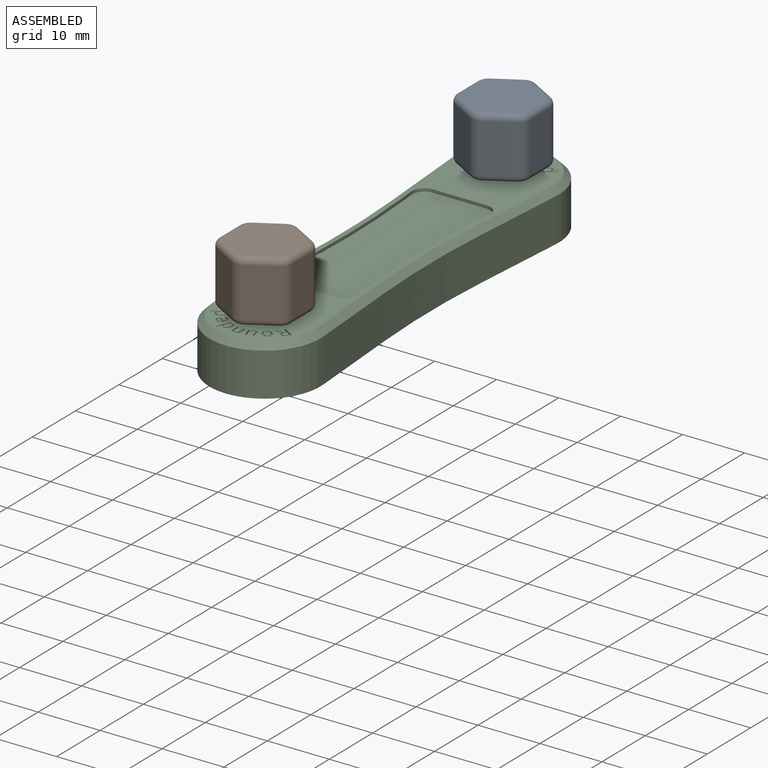
[diagram: assembled view]
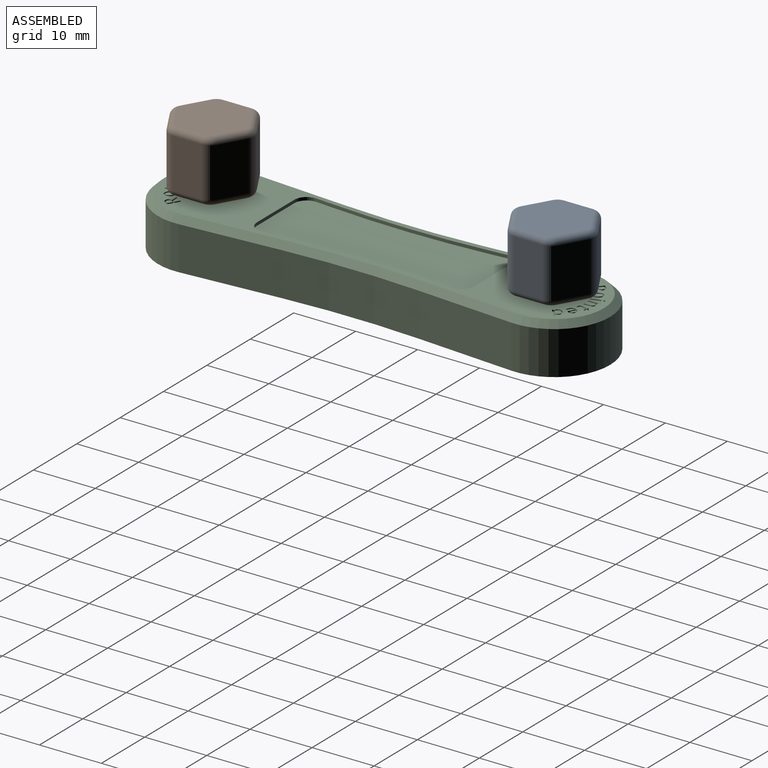
[diagram: assembled view, second angle]
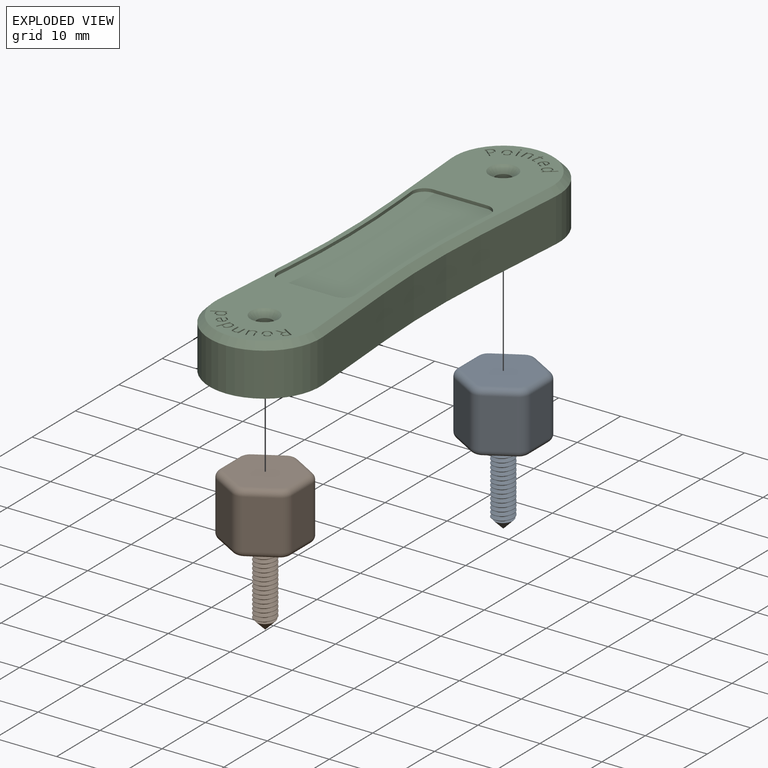
[diagram: exploded view]
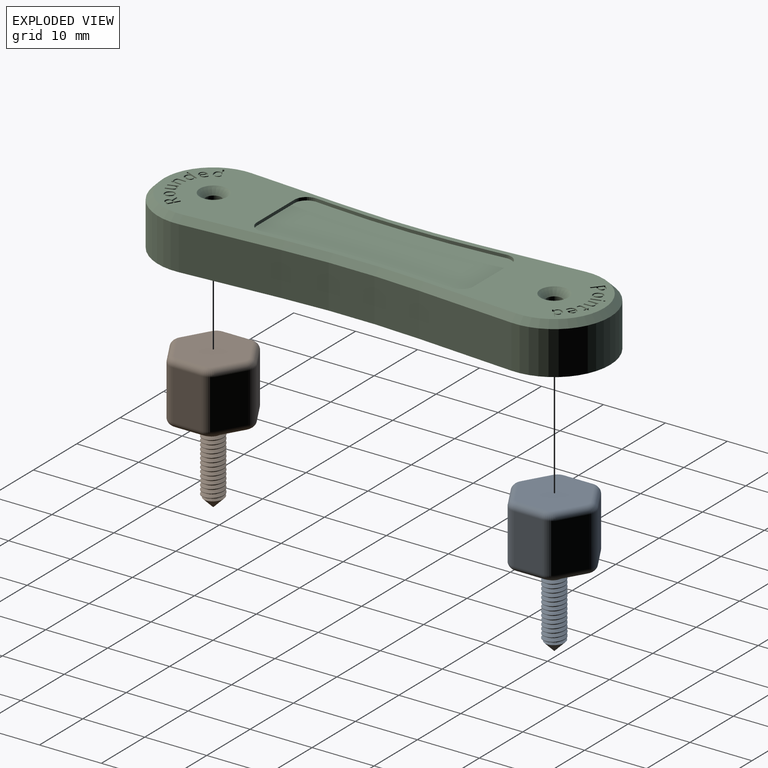
[diagram: exploded view, second angle]
ASSEMBLY  parts=3 mates=2
PART A: 46 faces, bbox 12.3x13.6x23 mm
  f0: cylinder r=1.75mm len=11.3mm, axis (0,0,1), area 23.3mm2, adj f9,f40,f42,f43,f44
  f1: plane 0.1x0.1mm, normal (0,0,-1), area 0mm2, adj f45
  f2: plane 8x4mm, normal (0.5,0.87,0), area 37mm2, adj f10,f11,f24,f38
  f3: plane 8x4mm, normal (-0.5,0.87,0), area 37mm2, adj f11,f12,f27,f34
  f4: plane 8x4.62mm, normal (-1,0,0), area 37mm2, adj f12,f13,f23,f30
  f5: plane 8x4mm, normal (-0.5,-0.87,0), area 37mm2, adj f13,f14,f19,f29
  f6: plane 8x4mm, normal (0.5,-0.87,0), area 37mm2, adj f14,f15,f16,f33
  f7: plane 8x4.62mm, normal (1,0,0), area 37mm2, adj f10,f15,f20,f37
  f8: plane 11.24x10mm, normal (0,0,1), area 86.3mm2, adj f28,f29,f30,f31,f32,f33,f34,f35
  f9: plane 11.24x10mm, normal (0,0,-1), area 76.7mm2, adj f0,f16,f17,f18,f19,f20,f21,f22
  f10: cylinder r=2mm len=8mm, axis (0,0,-1), area 16.8mm2, adj f2,f7,f22,f39
  f11: cylinder r=2mm len=8mm, axis (0,0,-1), area 16.8mm2, adj f2,f3,f26,f36
  f12: cylinder r=2mm len=8mm, axis (0,0,-1), area 16.8mm2, adj f3,f4,f25,f32
  f13: cylinder r=2mm len=8mm, axis (0,0,-1), area 16.8mm2, adj f4,f5,f21,f28
  f14: cylinder r=2mm len=8mm, axis (0,0,-1), area 16.8mm2, adj f5,f6,f17,f31
  f15: cylinder r=2mm len=8mm, axis (0,0,-1), area 16.8mm2, adj f6,f7,f18,f35
  f16: cylinder r=1mm len=4.5mm, axis (0.87,0.5,0), area 7.3mm2, adj f6,f9,f17,f18
  f17: torus R=1mm, axis (0,0,1), area 2.7mm2, adj f9,f14,f16,f19
  f18: torus R=1mm, axis (0,0,1), area 2.7mm2, adj f9,f15,f16,f20
  f19: cylinder r=1mm len=4.5mm, axis (0.87,-0.5,0), area 7.3mm2, adj f5,f9,f17,f21
  f20: cylinder r=1mm len=4.62mm, axis (0,1,0), area 7.3mm2, adj f7,f9,f18,f22
  f21: torus R=1mm, axis (0,0,1), area 2.7mm2, adj f9,f13,f19,f23
  f22: torus R=1mm, axis (0,0,1), area 2.7mm2, adj f9,f10,f20,f24
  f23: cylinder r=1mm len=4.62mm, axis (0,-1,0), area 7.3mm2, adj f4,f9,f21,f25
  f24: cylinder r=1mm len=4.5mm, axis (-0.87,0.5,0), area 7.3mm2, adj f2,f9,f22,f26
  f25: torus R=1mm, axis (0,0,1), area 2.7mm2, adj f9,f12,f23,f27
  f26: torus R=1mm, axis (0,0,1), area 2.7mm2, adj f9,f11,f24,f27
  f27: cylinder r=1mm len=4.5mm, axis (-0.87,-0.5,0), area 7.3mm2, adj f3,f9,f25,f26
  f28: torus R=1mm, axis (0,0,1), area 2.7mm2, adj f8,f13,f29,f30
  f29: cylinder r=1mm len=4.5mm, axis (-0.87,0.5,0), area 7.3mm2, adj f5,f8,f28,f31
  f30: cylinder r=1mm len=4.62mm, axis (0,1,0), area 7.3mm2, adj f4,f8,f28,f32
  f31: torus R=1mm, axis (0,0,1), area 2.7mm2, adj f8,f14,f29,f33
  f32: torus R=1mm, axis (0,0,1), area 2.7mm2, adj f8,f12,f30,f34
  f33: cylinder r=1mm len=4.5mm, axis (-0.87,-0.5,0), area 7.3mm2, adj f6,f8,f31,f35
  f34: cylinder r=1mm len=4.5mm, axis (0.87,0.5,0), area 7.3mm2, adj f3,f8,f32,f36
  f35: torus R=1mm, axis (0,0,1), area 2.7mm2, adj f8,f15,f33,f37
  f36: torus R=1mm, axis (0,0,1), area 2.7mm2, adj f8,f11,f34,f38
  f37: cylinder r=1mm len=4.62mm, axis (0,-1,0), area 7.3mm2, adj f7,f8,f35,f39
  f38: cylinder r=1mm len=4.5mm, axis (0.87,-0.5,0), area 7.3mm2, adj f2,f8,f36,f39
  f39: torus R=1mm, axis (0,0,1), area 2.7mm2, adj f8,f10,f37,f38
  f40: plane 0.58x0.5mm, normal (0,1,0), area 0.1mm2, adj f0,f41,f42,f43
  f41: cylinder r=1.75mm len=3.5mm, axis (0,0,1), area 1mm2, adj f9,f40,f43
  f42: bspline ~12.21x4.04mm, area 95.9mm2, adj f0,f40,f43,f44,f45
  f43: bspline ~12.21x4.04mm, area 99mm2, adj f0,f40,f41,f42,f44
  f44: cone r=0.05mm half-angle=45deg, axis (0,0,1), area 1mm2, adj f0,f42,f43,f45
  f45: cone r=0.05mm half-angle=45deg, axis (0,0,1), area 9.5mm2, adj f1,f42,f44
PART B: same geometry as A
PART C: 328 faces, bbox 18x73x8 mm
  f0: plane 71x15.99mm, normal (0,0,1), area 513.6mm2, adj f18,f19,f20,f21,f22,f23,f24,f25
  f1: cylinder r=150mm len=22.26mm, axis (0,0,-1), area 155.9mm2, adj f2,f10,f11,f22
  f2: plane 15.7x7mm, normal (1,-0.07,0), area 110.2mm2, adj f1,f3,f11,f20
  f3: cylinder r=9mm len=9.67mm, axis (0,0,-1), area 103.6mm2, adj f2,f4,f11,f21
  f4: cylinder r=9mm len=9.68mm, axis (0,0,-1), area 103.6mm2, adj f3,f5,f11,f23
  f5: plane 15.7x7mm, normal (-1,-0.08,0), area 110.2mm2, adj f4,f6,f11,f25
  f6: cylinder r=150mm len=22.26mm, axis (0,0,-1), area 155.9mm2, adj f5,f7,f11,f27
  f7: plane 15.71x7mm, normal (-1,0.07,0), area 110.2mm2, adj f6,f8,f11,f29
  f8: cylinder r=9mm len=9.65mm, axis (0,0,-1), area 103.2mm2, adj f7,f9,f11,f28
  f9: cylinder r=9mm len=9.67mm, axis (0,0,-1), area 103.2mm2, adj f8,f10,f11,f26
  f10: plane 15.7x7mm, normal (1,0.07,0), area 110.2mm2, adj f1,f9,f11,f24
  f11: plane 73x17.99mm, normal (0,0,-1), area 1117.1mm2, adj f1,f2,f3,f4,f5,f6,f7,f8
  f12: cylinder r=1.25mm len=7mm, axis (0,0,-1), area 55mm2, adj f11,f18
  f13: cylinder r=1.25mm len=7mm, axis (0,0,-1), area 55mm2, adj f11,f19
  f14: cylinder r=1.25mm len=6mm, axis (0,0,-1), area 47.1mm2, adj f11,f15
  f15: plane 2.5x2.5mm, normal (0,0,-1), area 4.9mm2, adj f14
  f16: cylinder r=1.25mm len=6mm, axis (0,0,-1), area 47.1mm2, adj f11,f17
  f17: plane 2.5x2.5mm, normal (0,0,-1), area 4.9mm2, adj f16
  f18: cone r=2.25mm half-angle=45deg, axis (0,0,1), area 15.6mm2, adj f0,f12
  f19: cone r=2.25mm half-angle=45deg, axis (0,0,1), area 15.6mm2, adj f0,f13
  f20: plane 15.78x2.17mm, normal (0.71,-0.05,0.71), area 22.3mm2, adj f0,f2,f21,f22
  f21: cone r=9mm half-angle=45deg, axis (0,0,-1), area 19.8mm2, adj f0,f3,f20,f23
  f22: cone r=150mm half-angle=45deg, axis (0,0,1), area 31.6mm2, adj f0,f1,f20,f24
  f23: cone r=8mm half-angle=45deg, axis (0,0,-1), area 19.8mm2, adj f0,f4,f21,f25
  f24: plane 15.78x2.16mm, normal (0.71,0.05,0.71), area 22.3mm2, adj f0,f10,f22,f26
  f25: plane 15.78x2.19mm, normal (-0.71,-0.05,0.71), area 22.3mm2, adj f0,f5,f23,f27
  f26: cone r=9mm half-angle=45deg, axis (0,0,-1), area 19.7mm2, adj f0,f9,f24,f28
  f27: cone r=151mm half-angle=45deg, axis (0,0,1), area 31.6mm2, adj f0,f6,f25,f29
  f28: cone r=8mm half-angle=45deg, axis (0,0,-1), area 19.7mm2, adj f0,f8,f26,f29
  f29: plane 15.78x2.14mm, normal (-0.71,0.05,0.71), area 22.3mm2, adj f0,f7,f27,f28
  f30: cylinder r=2mm len=2.17mm, axis (0,0,1), area 1.7mm2, adj f0,f31,f43,f44
  f31: plane 4.32x0.5mm, normal (0,-1,0), area 2.2mm2, adj f0,f30,f32,f44
  f32: plane 4.32x0.5mm, normal (0,-1,0), area 2.2mm2, adj f0,f31,f33,f44
  f33: cylinder r=2mm len=2.17mm, axis (0,0,1), area 1.7mm2, adj f0,f32,f34,f44
  f34: plane 2.52x0.5mm, normal (1,0.09,0), area 1.3mm2, adj f0,f33,f35,f44
  f35: cylinder r=150mm len=25.62mm, axis (0,0,1), area 12.8mm2, adj f0,f34,f36,f44
  f36: plane 2.52x0.5mm, normal (1,-0.09,0), area 1.3mm2, adj f0,f35,f37,f44
  f37: cylinder r=2mm len=2.17mm, axis (0,0,1), area 1.7mm2, adj f0,f36,f38,f44
  f38: plane 4.32x0.5mm, normal (0,1,0), area 2.2mm2, adj f0,f37,f39,f44
  f39: plane 4.32x0.5mm, normal (0,1,0), area 2.2mm2, adj f0,f38,f40,f44
  f40: cylinder r=2mm len=2.17mm, axis (0,0,1), area 1.7mm2, adj f0,f39,f41,f44
  f41: plane 2.52x0.5mm, normal (-1,-0.09,0), area 1.3mm2, adj f0,f40,f42,f44
  f42: cylinder r=150mm len=25.62mm, axis (0,0,1), area 12.8mm2, adj f0,f41,f43,f44
  f43: plane 2.52x0.5mm, normal (-1,0.09,0), area 1.3mm2, adj f0,f30,f42,f44
  f44: plane 35x12.65mm, normal (0,0,1), area 407.7mm2, adj f30,f31,f32,f33,f34,f35,f36,f37
  f45: extruded ~0.58x0.34mm, area 0.2mm2, adj f0,f46,f62,f64
  f46: extruded ~0.25x0.13mm, area 0mm2, adj f0,f45,f47,f64
  f47: extruded ~0.25x0.12mm, area 0mm2, adj f0,f46,f63,f64
  f48: extruded ~0.25x0.09mm, area 0mm2, adj f0,f49,f63,f64
  f49: extruded ~0.25x0.12mm, area 0mm2, adj f0,f48,f50,f64
  f50: extruded ~0.25x0.16mm, area 0.1mm2, adj f0,f49,f51,f64
  f51: extruded ~0.25x0.23mm, area 0.1mm2, adj f0,f50,f52,f64
  f52: plane 0.89x0.25mm, normal (-0.96,0.26,0), area 0.2mm2, adj f0,f51,f53,f64
  f53: plane 0.44x0.25mm, normal (0.26,0.96,0), area 0.1mm2, adj f0,f52,f54,f64
  f54: plane 0.25x0.18mm, normal (-0.96,0.26,0), area 0mm2, adj f0,f53,f55,f64
  f55: plane 0.44x0.25mm, normal (-0.26,-0.96,0), area 0.1mm2, adj f0,f54,f56,f64
  f56: plane 0.35x0.25mm, normal (-0.96,0.26,0), area 0.1mm2, adj f0,f55,f57,f64
  f57: plane 0.25x0.13mm, normal (-0.26,-0.96,0), area 0mm2, adj f0,f56,f58,f64
  f58: plane 0.3x0.25mm, normal (0.85,-0.53,0), area 0.1mm2, adj f0,f57,f59,f64
  f59: plane 0.25x0.24mm, normal (0.15,-0.99,0), area 0.1mm2, adj f0,f58,f60,f64
  f60: plane 0.25x0.11mm, normal (0.96,-0.26,0), area 0mm2, adj f0,f59,f61,f64
  f61: plane 0.25x0.22mm, normal (0.26,0.96,0), area 0.1mm2, adj f0,f60,f62,f64
  f62: plane 0.9x0.25mm, normal (0.96,-0.26,0), area 0.2mm2, adj f0,f45,f61,f64
  f63: plane 0.25x0.18mm, normal (-0.96,0.26,0), area 0mm2, adj f0,f47,f48,f64
  f64: plane 2.01x1.05mm, normal (0,0,1), area 0.6mm2, adj f45,f46,f47,f48,f49,f50,f51,f52
  f65: extruded ~0.48x0.25mm, area 0.1mm2, adj f0,f66,f80,f84
  f66: extruded ~0.31x0.25mm, area 0.1mm2, adj f0,f65,f67,f84
  f67: extruded ~0.43x0.25mm, area 0.1mm2, adj f0,f66,f81,f84
  f68: extruded ~0.53x0.25mm, area 0.1mm2, adj f0,f69,f82,f84
  f69: extruded ~0.41x0.3mm, area 0.1mm2, adj f0,f68,f70,f84
  f70: extruded ~0.54x0.25mm, area 0.1mm2, adj f0,f69,f71,f84
  f71: extruded ~0.47x0.42mm, area 0.2mm2, adj f0,f70,f72,f84
  f72: extruded ~0.61x0.25mm, area 0.2mm2, adj f0,f71,f73,f84
  f73: extruded ~0.46x0.36mm, area 0.2mm2, adj f0,f72,f74,f84
  f74: extruded ~0.25x0.24mm, area 0.1mm2, adj f0,f73,f79,f84
  f75: extruded ~0.29x0.25mm, area 0.1mm2, adj f76,f83,f84,f85
  f76: extruded ~0.32x0.25mm, area 0.1mm2, adj f75,f77,f84,f85
  f77: extruded ~0.25x0.25mm, area 0.1mm2, adj f76,f78,f84,f85
  f78: extruded ~0.35x0.25mm, area 0.1mm2, adj f77,f83,f84,f85
  f79: extruded ~0.25x0.24mm, area 0.1mm2, adj f0,f74,f80,f84
  f80: plane 0.25x0.18mm, normal (-0.86,0.52,0), area 0.1mm2, adj f0,f65,f79,f84
  f81: plane 0.92x0.56mm, normal (0.52,0.86,0), area 0.3mm2, adj f0,f67,f82,f84
  f82: plane 0.25x0.13mm, normal (-0.86,0.52,0), area 0mm2, adj f0,f68,f81,f84
  f83: plane 0.7x0.42mm, normal (-0.52,-0.86,0), area 0.2mm2, adj f75,f78,f84,f85
  f84: plane 1.72x1.51mm, normal (0,0,1), area 1mm2, adj f65,f66,f67,f68,f69,f70,f71,f72
  f85: plane 0.81x0.67mm, normal (0,0,1), area 0.3mm2, adj f75,f76,f77,f78,f83
  f86: extruded ~0.53x0.25mm, area 0.1mm2, adj f0,f87,f105,f110
  f87: extruded ~0.47x0.25mm, area 0.1mm2, adj f0,f86,f88,f110
  f88: extruded ~0.58x0.25mm, area 0.2mm2, adj f0,f87,f89,f110
  f89: extruded ~0.51x0.36mm, area 0.2mm2, adj f0,f88,f90,f110
  f90: extruded ~0.5x0.25mm, area 0.1mm2, adj f0,f89,f91,f110
  f91: extruded ~0.49x0.25mm, area 0.1mm2, adj f0,f90,f106,f110
  f92: extruded ~0.43x0.25mm, area 0.1mm2, adj f93,f99,f110,f111
  f93: extruded ~0.33x0.25mm, area 0.1mm2, adj f92,f94,f110,f111
  f94: extruded ~0.36x0.25mm, area 0.1mm2, adj f93,f95,f110,f111
  f95: extruded ~0.38x0.3mm, area 0.1mm2, adj f94,f108,f110,f111
  f96: extruded ~0.4x0.25mm, area 0.1mm2, adj f97,f108,f110,f111
  f97: extruded ~0.32x0.25mm, area 0.1mm2, adj f96,f98,f110,f111
  f98: extruded ~0.35x0.25mm, area 0.1mm2, adj f97,f99,f110,f111
  f99: extruded ~0.37x0.28mm, area 0.1mm2, adj f92,f98,f110,f111
  f100: plane 1.73x1.4mm, normal (-0.63,0.78,0), area 0.6mm2, adj f0,f101,f109,f110
  f101: plane 0.25x0.18mm, normal (-0.78,-0.63,0), area 0.1mm2, adj f0,f100,f102,f110
  f102: plane 0.5x0.4mm, normal (0.63,-0.78,0), area 0.2mm2, adj f0,f101,f103,f110
  f103: plane 0.25x0.08mm, normal (0.67,-0.74,0), area 0mm2, adj f0,f102,f104,f110
  f104: plane 0.25x0.08mm, normal (0.7,-0.72,0), area 0mm2, adj f0,f103,f105,f110
  f105: plane 0.25x0.01mm, normal (-0.78,-0.63,0), area 0mm2, adj f0,f86,f104,f110
  f106: plane 0.25x0.01mm, normal (0.78,0.63,0), area 0mm2, adj f0,f91,f107,f110
  f107: plane 0.25x0.16mm, normal (0.74,-0.68,0), area 0.1mm2, adj f0,f106,f109,f110
  f108: plane 0.25x0.04mm, normal (0.63,-0.78,0), area 0mm2, adj f95,f96,f110,f111
  f109: plane 0.25x0.15mm, normal (0.78,0.63,0), area 0mm2, adj f0,f100,f107,f110
  f110: plane 2.38x1.81mm, normal (0,0,1), area 1.2mm2, adj f86,f87,f88,f89,f90,f91,f92,f93
  f111: plane 1.2x1.13mm, normal (0,0,1), area 0.9mm2, adj f92,f93,f94,f95,f96,f97,f98,f99
  f112: extruded ~0.45x0.36mm, area 0.1mm2, adj f0,f113,f128,f129
  f113: extruded ~0.61x0.25mm, area 0.2mm2, adj f0,f112,f114,f129
  f114: extruded ~0.33x0.29mm, area 0.1mm2, adj f0,f113,f115,f129
  f115: extruded ~0.36x0.25mm, area 0.1mm2, adj f0,f114,f116,f129
  f116: extruded ~0.37x0.25mm, area 0.1mm2, adj f0,f115,f117,f129
  f117: extruded ~0.45x0.36mm, area 0.1mm2, adj f0,f116,f118,f129
  f118: extruded ~0.61x0.25mm, area 0.2mm2, adj f0,f117,f119,f129
  f119: extruded ~0.46x0.42mm, area 0.2mm2, adj f0,f118,f128,f129
  f120: extruded ~0.39x0.25mm, area 0.1mm2, adj f121,f127,f129,f130
  f121: extruded ~0.33x0.33mm, area 0.1mm2, adj f120,f122,f129,f130
  f122: extruded ~0.46x0.25mm, area 0.1mm2, adj f121,f123,f129,f130
  f123: extruded ~0.31x0.25mm, area 0.1mm2, adj f122,f124,f129,f130
  f124: extruded ~0.38x0.25mm, area 0.1mm2, adj f123,f125,f129,f130
  f125: extruded ~0.34x0.33mm, area 0.1mm2, adj f124,f126,f129,f130
  f126: extruded ~0.45x0.25mm, area 0.1mm2, adj f125,f127,f129,f130
  f127: extruded ~0.31x0.25mm, area 0.1mm2, adj f120,f126,f129,f130
  f128: extruded ~0.56x0.25mm, area 0.1mm2, adj f0,f112,f119,f129
  f129: plane 1.64x1.58mm, normal (0,0,1), area 0.9mm2, adj f112,f113,f114,f115,f116,f117,f118,f119
  f130: plane 1.23x1.11mm, normal (0,0,1), area 1mm2, adj f120,f121,f122,f123,f124,f125,f126,f127
  f131: plane 1.51x0.43mm, normal (0.96,0.27,0), area 0.4mm2, adj f0,f132,f134,f135
  f132: plane 0.25x0.23mm, normal (-0.27,0.96,0), area 0.1mm2, adj f0,f131,f133,f135
  f133: plane 1.51x0.43mm, normal (-0.96,-0.27,0), area 0.4mm2, adj f0,f132,f134,f135
  f134: plane 0.25x0.23mm, normal (0.27,-0.96,0), area 0.1mm2, adj f0,f131,f133,f135
  f135: plane 1.57x0.65mm, normal (0,0,1), area 0.4mm2, adj f131,f132,f133,f134
  f136: extruded ~0.25x0.08mm, area 0mm2, adj f0,f137,f143,f144
  f137: extruded ~0.25x0.13mm, area 0mm2, adj f0,f136,f138,f144
  f138: extruded ~0.25x0.1mm, area 0mm2, adj f0,f137,f139,f144
  f139: extruded ~0.25x0.11mm, area 0mm2, adj f0,f138,f140,f144
  f140: extruded ~0.25x0.09mm, area 0mm2, adj f0,f139,f141,f144
  f141: extruded ~0.25x0.13mm, area 0mm2, adj f0,f140,f142,f144
  f142: extruded ~0.25x0.1mm, area 0mm2, adj f0,f141,f143,f144
  f143: extruded ~0.25x0.11mm, area 0mm2, adj f0,f136,f142,f144
  f144: plane 0.32x0.3mm, normal (0,0,1), area 0.1mm2, adj f136,f137,f138,f139,f140,f141,f142,f143
  f145: extruded ~0.43x0.25mm, area 0.1mm2, adj f0,f146,f161,f162
  f146: extruded ~0.43x0.25mm, area 0.1mm2, adj f0,f145,f147,f162
  f147: extruded ~0.29x0.25mm, area 0.1mm2, adj f0,f146,f148,f162
  f148: extruded ~0.25x0.2mm, area 0.1mm2, adj f0,f147,f153,f162
  f149: extruded ~0.44x0.25mm, area 0.1mm2, adj f0,f150,f158,f162
  f150: extruded ~0.36x0.25mm, area 0.1mm2, adj f0,f149,f151,f162
  f151: extruded ~0.28x0.25mm, area 0.1mm2, adj f0,f150,f152,f162
  f152: extruded ~0.28x0.25mm, area 0.1mm2, adj f0,f151,f159,f162
  f153: plane 0.25x0.01mm, normal (0.03,-1,0), area 0mm2, adj f0,f148,f154,f162
  f154: plane 0.25x0.21mm, normal (-0.98,-0.2,0), area 0.1mm2, adj f0,f153,f155,f162
  f155: plane 0.25x0.19mm, normal (0.03,-1,0), area 0mm2, adj f0,f154,f156,f162
  f156: plane 1.56x0.25mm, normal (1,0.03,0), area 0.4mm2, adj f0,f155,f157,f162
  f157: plane 0.25x0.24mm, normal (-0.03,1,0), area 0.1mm2, adj f0,f156,f158,f162
  f158: plane 0.82x0.25mm, normal (-1,-0.03,0), area 0.2mm2, adj f0,f149,f157,f162
  f159: plane 1.01x0.25mm, normal (1,0.03,0), area 0.3mm2, adj f0,f152,f160,f162
  f160: plane 0.25x0.24mm, normal (-0.03,1,0), area 0.1mm2, adj f0,f159,f161,f162
  f161: plane 1.02x0.25mm, normal (-1,-0.03,0), area 0.3mm2, adj f0,f145,f160,f162
  f162: plane 1.62x1.35mm, normal (0,0,1), area 0.9mm2, adj f145,f146,f147,f148,f149,f150,f151,f152
  f163: extruded ~0.59x0.26mm, area 0.2mm2, adj f0,f164,f173,f178
  f164: extruded ~0.48x0.25mm, area 0.1mm2, adj f0,f163,f165,f178
  f165: extruded ~0.97x0.37mm, area 0.3mm2, adj f0,f164,f177,f178
  f166: extruded ~0.35x0.26mm, area 0.1mm2, adj f167,f176,f178,f179
  f167: extruded ~0.32x0.25mm, area 0.1mm2, adj f166,f168,f178,f179
  f168: extruded ~0.32x0.25mm, area 0.1mm2, adj f167,f169,f178,f179
  f169: extruded ~0.43x0.25mm, area 0.1mm2, adj f168,f174,f178,f179
  f170: plane 1.61x1.32mm, normal (0.63,0.77,0), area 0.5mm2, adj f0,f171,f177,f178
  f171: plane 0.25x0.19mm, normal (-0.77,0.63,0), area 0.1mm2, adj f0,f170,f172,f178
  f172: plane 0.63x0.52mm, normal (-0.63,-0.77,0), area 0.2mm2, adj f0,f171,f173,f178
  f173: plane 0.25x0.19mm, normal (-0.77,0.63,0), area 0.1mm2, adj f0,f163,f172,f178
  f174: plane 0.25x0.17mm, normal (0.77,-0.63,0), area 0.1mm2, adj f169,f175,f178,f179
  f175: plane 0.66x0.54mm, normal (-0.63,-0.77,0), area 0.2mm2, adj f174,f176,f178,f179
  f176: plane 0.25x0.21mm, normal (-0.77,0.63,0), area 0.1mm2, adj f166,f175,f178,f179
  f177: plane 0.42x0.34mm, normal (0.77,-0.63,0), area 0.1mm2, adj f0,f165,f170,f178
  f178: plane 2.19x1.77mm, normal (0,0,1), area 1.1mm2, adj f163,f164,f165,f166,f167,f168,f169,f170
  f179: plane 1.04x1.02mm, normal (0,0,1), area 0.6mm2, adj f166,f167,f168,f169,f174,f175,f176
  f180: extruded ~0.64x0.29mm, area 0.2mm2, adj f0,f181,f188,f198
  f181: extruded ~0.47x0.25mm, area 0.1mm2, adj f0,f180,f182,f198
  f182: extruded ~0.42x0.41mm, area 0.1mm2, adj f0,f181,f189,f198
  f183: extruded ~0.29x0.28mm, area 0.1mm2, adj f184,f196,f198,f199
  f184: extruded ~0.32x0.25mm, area 0.1mm2, adj f183,f185,f198,f199
  f185: extruded ~0.26x0.25mm, area 0.1mm2, adj f184,f186,f198,f199
  f186: extruded ~0.38x0.25mm, area 0.1mm2, adj f185,f194,f198,f199
  f187: plane 0.25x0.25mm, normal (0.86,-0.5,0), area 0.1mm2, adj f0,f188,f197,f198
  f188: plane 1.1x0.25mm, normal (-0.02,1,0), area 0.3mm2, adj f0,f180,f187,f198
  f189: plane 0.49x0.29mm, normal (-0.86,0.5,0), area 0.1mm2, adj f0,f182,f190,f198
  f190: plane 1.8x1.05mm, normal (-0.5,-0.86,0), area 0.5mm2, adj f0,f189,f191,f198
  f191: plane 0.25x0.21mm, normal (0.86,-0.5,0), area 0.1mm2, adj f0,f190,f192,f198
  f192: plane 0.75x0.44mm, normal (0.5,0.86,0), area 0.2mm2, adj f0,f191,f193,f198
  f193: plane 0.38x0.25mm, normal (0.86,-0.5,0), area 0.1mm2, adj f0,f192,f197,f198
  f194: plane 0.29x0.25mm, normal (-0.86,0.5,0), area 0.1mm2, adj f186,f195,f198,f199
  f195: plane 0.69x0.4mm, normal (0.5,0.86,0), area 0.2mm2, adj f194,f196,f198,f199
  f196: plane 0.27x0.25mm, normal (0.86,-0.5,0), area 0.1mm2, adj f183,f195,f198,f199
  f197: plane 1x0.25mm, normal (0,-1,0), area 0.3mm2, adj f0,f187,f193,f198
  f198: plane 2.54x2.01mm, normal (0,0,1), area 1.3mm2, adj f180,f181,f182,f183,f184,f185,f186,f187
  f199: plane 1x0.98mm, normal (0,0,1), area 0.6mm2, adj f183,f184,f185,f186,f194,f195,f196
  f200: extruded ~0.45x0.25mm, area 0.1mm2, adj f0,f201,f215,f219
  f201: extruded ~0.35x0.25mm, area 0.1mm2, adj f0,f200,f202,f219
  f202: extruded ~0.41x0.25mm, area 0.1mm2, adj f0,f201,f216,f219
  f203: extruded ~0.5x0.25mm, area 0.1mm2, adj f0,f204,f217,f219
  f204: extruded ~0.45x0.25mm, area 0.1mm2, adj f0,f203,f205,f219
  f205: extruded ~0.52x0.25mm, area 0.1mm2, adj f0,f204,f206,f219
  f206: extruded ~0.54x0.33mm, area 0.2mm2, adj f0,f205,f207,f219
  f207: extruded ~0.57x0.25mm, area 0.2mm2, adj f0,f206,f208,f219
  f208: extruded ~0.52x0.27mm, area 0.2mm2, adj f0,f207,f209,f219
  f209: extruded ~0.25x0.22mm, area 0.1mm2, adj f0,f208,f214,f219
  f210: extruded ~0.32x0.25mm, area 0.1mm2, adj f211,f218,f219,f220
  f211: extruded ~0.31x0.25mm, area 0.1mm2, adj f210,f212,f219,f220
  f212: extruded ~0.28x0.25mm, area 0.1mm2, adj f211,f213,f219,f220
  f213: extruded ~0.32x0.25mm, area 0.1mm2, adj f212,f218,f219,f220
  f214: extruded ~0.25x0.23mm, area 0.1mm2, adj f0,f209,f215,f219
  f215: plane 0.25x0.16mm, normal (0.75,-0.66,0), area 0.1mm2, adj f0,f200,f214,f219
  f216: plane 0.81x0.71mm, normal (-0.66,-0.75,0), area 0.3mm2, adj f0,f202,f217,f219
  f217: plane 0.25x0.11mm, normal (0.75,-0.66,0), area 0mm2, adj f0,f203,f216,f219
  f218: plane 0.62x0.54mm, normal (0.66,0.75,0), area 0.2mm2, adj f210,f213,f219,f220
  f219: plane 1.71x1.53mm, normal (0,0,1), area 1mm2, adj f200,f201,f202,f203,f204,f205,f206,f207
  f220: plane 0.77x0.72mm, normal (0,0,1), area 0.3mm2, adj f210,f211,f212,f213,f218
  f221: extruded ~0.54x0.25mm, area 0.1mm2, adj f0,f222,f240,f245
  f222: extruded ~0.42x0.31mm, area 0.1mm2, adj f0,f221,f223,f245
  f223: extruded ~0.61x0.25mm, area 0.2mm2, adj f0,f222,f224,f245
  f224: extruded ~0.44x0.44mm, area 0.2mm2, adj f0,f223,f225,f245
  f225: extruded ~0.52x0.25mm, area 0.1mm2, adj f0,f224,f226,f245
  f226: extruded ~0.45x0.31mm, area 0.1mm2, adj f0,f225,f241,f245
  f227: extruded ~0.45x0.25mm, area 0.1mm2, adj f228,f234,f245,f246
  f228: extruded ~0.3x0.25mm, area 0.1mm2, adj f227,f229,f245,f246
  f229: extruded ~0.38x0.25mm, area 0.1mm2, adj f228,f230,f245,f246
  f230: extruded ~0.36x0.33mm, area 0.1mm2, adj f229,f243,f245,f246
  f231: extruded ~0.43x0.25mm, area 0.1mm2, adj f232,f243,f245,f246
  f232: extruded ~0.29x0.25mm, area 0.1mm2, adj f231,f233,f245,f246
  f233: extruded ~0.36x0.25mm, area 0.1mm2, adj f232,f234,f245,f246
  f234: extruded ~0.34x0.32mm, area 0.1mm2, adj f227,f233,f245,f246
  f235: plane 1.94x1.08mm, normal (0.48,-0.87,0), area 0.6mm2, adj f0,f236,f244,f245
  f236: plane 0.25x0.21mm, normal (0.87,0.48,0), area 0.1mm2, adj f0,f235,f237,f245
  f237: plane 0.56x0.31mm, normal (-0.48,0.87,0), area 0.2mm2, adj f0,f236,f238,f245
  f238: plane 0.25x0.09mm, normal (-0.53,0.85,0), area 0mm2, adj f0,f237,f239,f245
  f239: plane 0.25x0.09mm, normal (-0.56,0.83,0), area 0mm2, adj f0,f238,f240,f245
  f240: plane 0.25x0.02mm, normal (0.87,0.48,0), area 0mm2, adj f0,f221,f239,f245
  f241: plane 0.25x0.01mm, normal (-0.87,-0.48,0), area 0mm2, adj f0,f226,f242,f245
  f242: plane 0.25x0.17mm, normal (-0.61,0.79,0), area 0.1mm2, adj f0,f241,f244,f245
  f243: plane 0.25x0.04mm, normal (-0.48,0.87,0), area 0mm2, adj f230,f231,f245,f246
  f244: plane 0.25x0.17mm, normal (-0.87,-0.48,0), area 0mm2, adj f0,f235,f242,f245
  f245: plane 2.43x1.75mm, normal (0,0,1), area 1.2mm2, adj f221,f222,f223,f224,f225,f226,f227,f228
  f246: plane 1.23x1.08mm, normal (0,0,1), area 0.9mm2, adj f227,f228,f229,f230,f231,f232,f233,f234
  f247: extruded ~0.4x0.37mm, area 0.1mm2, adj f0,f248,f266,f271
  f248: extruded ~0.52x0.25mm, area 0.1mm2, adj f0,f247,f249,f271
  f249: extruded ~0.49x0.38mm, area 0.2mm2, adj f0,f248,f250,f271
  f250: extruded ~0.62x0.25mm, area 0.2mm2, adj f0,f249,f251,f271
  f251: extruded ~0.37x0.37mm, area 0.1mm2, adj f0,f250,f252,f271
  f252: extruded ~0.54x0.25mm, area 0.1mm2, adj f0,f251,f267,f271
  f253: extruded ~0.38x0.27mm, area 0.1mm2, adj f254,f260,f271,f272
  f254: extruded ~0.36x0.25mm, area 0.1mm2, adj f253,f255,f271,f272
  f255: extruded ~0.28x0.26mm, area 0.1mm2, adj f254,f256,f271,f272
  f256: extruded ~0.48x0.25mm, area 0.1mm2, adj f255,f269,f271,f272
  f257: extruded ~0.36x0.26mm, area 0.1mm2, adj f258,f269,f271,f272
  f258: extruded ~0.38x0.25mm, area 0.1mm2, adj f257,f259,f271,f272
  f259: extruded ~0.26x0.25mm, area 0.1mm2, adj f258,f260,f271,f272
  f260: extruded ~0.46x0.25mm, area 0.1mm2, adj f253,f259,f271,f272
  f261: plane 2.06x0.83mm, normal (0.93,-0.37,0), area 0.6mm2, adj f0,f262,f270,f271
  f262: plane 0.25x0.22mm, normal (0.37,0.93,0), area 0.1mm2, adj f0,f261,f263,f271
  f263: plane 0.59x0.25mm, normal (-0.93,0.37,0), area 0.2mm2, adj f0,f262,f264,f271
  f264: plane 0.25x0.1mm, normal (-0.95,0.32,0), area 0mm2, adj f0,f263,f265,f271
  f265: plane 0.25x0.11mm, normal (-0.96,0.29,0), area 0mm2, adj f0,f264,f266,f271
  f266: plane 0.25x0.02mm, normal (0.37,0.93,0), area 0mm2, adj f0,f247,f265,f271
  f267: plane 0.25x0.01mm, normal (-0.37,-0.93,0), area 0mm2, adj f0,f252,f268,f271
  f268: plane 0.25x0.21mm, normal (-0.97,0.23,0), area 0.1mm2, adj f0,f267,f270,f271
  f269: plane 0.25x0.05mm, normal (-0.93,0.37,0), area 0mm2, adj f256,f257,f271,f272
  f270: plane 0.25x0.18mm, normal (-0.37,-0.93,0), area 0mm2, adj f0,f261,f268,f271
  f271: plane 2.15x1.93mm, normal (0,0,1), area 1.2mm2, adj f247,f248,f249,f250,f251,f252,f253,f254
  f272: plane 1.25x1.04mm, normal (0,0,1), area 0.9mm2, adj f253,f254,f255,f256,f257,f258,f259,f260
  f273: extruded ~0.44x0.25mm, area 0.1mm2, adj f0,f274,f289,f290
  f274: extruded ~0.42x0.25mm, area 0.1mm2, adj f0,f273,f275,f290
  f275: extruded ~0.29x0.25mm, area 0.1mm2, adj f0,f274,f276,f290
  f276: extruded ~0.25x0.21mm, area 0.1mm2, adj f0,f275,f281,f290
  f277: extruded ~0.43x0.25mm, area 0.1mm2, adj f0,f278,f286,f290
  f278: extruded ~0.36x0.25mm, area 0.1mm2, adj f0,f277,f279,f290
  f279: extruded ~0.27x0.25mm, area 0.1mm2, adj f0,f278,f280,f290
  f280: extruded ~0.29x0.25mm, area 0.1mm2, adj f0,f279,f287,f290
  f281: plane 0.25x0.01mm, normal (0.03,1,0), area 0mm2, adj f0,f276,f282,f290
  f282: plane 0.25x0.22mm, normal (0.99,0.14,0), area 0.1mm2, adj f0,f281,f283,f290
  f283: plane 0.25x0.19mm, normal (0.03,1,0), area 0mm2, adj f0,f282,f284,f290
  f284: plane 1.56x0.25mm, normal (-1,0.03,0), area 0.4mm2, adj f0,f283,f285,f290
  f285: plane 0.25x0.24mm, normal (-0.03,-1,0), area 0.1mm2, adj f0,f284,f286,f290
  f286: plane 0.82x0.25mm, normal (1,-0.03,0), area 0.2mm2, adj f0,f277,f285,f290
  f287: plane 1.01x0.25mm, normal (-1,0.03,0), area 0.3mm2, adj f0,f280,f288,f290
  f288: plane 0.25x0.24mm, normal (-0.03,-1,0), area 0.1mm2, adj f0,f287,f289,f290
  f289: plane 1.02x0.25mm, normal (1,-0.03,0), area 0.3mm2, adj f0,f273,f288,f290
  f290: plane 1.62x1.35mm, normal (0,0,1), area 0.9mm2, adj f273,f274,f275,f276,f277,f278,f279,f280
  f291: extruded ~0.37x0.27mm, area 0.1mm2, adj f0,f292,f307,f308
  f292: extruded ~0.45x0.25mm, area 0.1mm2, adj f0,f291,f293,f308
  f293: extruded ~0.26x0.25mm, area 0.1mm2, adj f0,f292,f294,f308
  f294: extruded ~0.25x0.23mm, area 0.1mm2, adj f0,f293,f299,f308
  f295: extruded ~0.45x0.25mm, area 0.1mm2, adj f0,f296,f304,f308
  f296: extruded ~0.3x0.25mm, area 0.1mm2, adj f0,f295,f297,f308
  f297: extruded ~0.29x0.25mm, area 0.1mm2, adj f0,f296,f298,f308
  f298: extruded ~0.25x0.24mm, area 0.1mm2, adj f0,f297,f305,f308
  f299: plane 0.25x0.01mm, normal (0.31,-0.95,0), area 0mm2, adj f0,f294,f300,f308
  f300: plane 0.25x0.19mm, normal (-0.89,-0.46,0), area 0.1mm2, adj f0,f299,f301,f308
  f301: plane 0.25x0.19mm, normal (0.31,-0.95,0), area 0mm2, adj f0,f300,f302,f308
  f302: plane 1.49x0.49mm, normal (0.95,0.31,0), area 0.4mm2, adj f0,f301,f303,f308
  f303: plane 0.25x0.23mm, normal (-0.31,0.95,0), area 0.1mm2, adj f0,f302,f304,f308
  f304: plane 0.78x0.26mm, normal (-0.95,-0.31,0), area 0.2mm2, adj f0,f295,f303,f308
  f305: plane 0.96x0.32mm, normal (0.95,0.31,0), area 0.3mm2, adj f0,f298,f306,f308
  f306: plane 0.25x0.23mm, normal (-0.31,0.95,0), area 0.1mm2, adj f0,f305,f307,f308
  f307: plane 0.97x0.32mm, normal (-0.95,-0.31,0), area 0.3mm2, adj f0,f291,f306,f308
  f308: plane 1.81x1.73mm, normal (0,0,1), area 0.9mm2, adj f291,f292,f293,f294,f295,f296,f297,f298
  f309: extruded ~0.5x0.29mm, area 0.1mm2, adj f0,f310,f325,f326
  f310: extruded ~0.59x0.25mm, area 0.2mm2, adj f0,f309,f311,f326
  f311: extruded ~0.34x0.29mm, area 0.1mm2, adj f0,f310,f312,f326
  f312: extruded ~0.37x0.25mm, area 0.1mm2, adj f0,f311,f313,f326
  f313: extruded ~0.35x0.25mm, area 0.1mm2, adj f0,f312,f314,f326
  f314: extruded ~0.5x0.29mm, area 0.1mm2, adj f0,f313,f315,f326
  f315: extruded ~0.59x0.25mm, area 0.2mm2, adj f0,f314,f316,f326
  f316: extruded ~0.52x0.35mm, area 0.2mm2, adj f0,f315,f325,f326
  f317: extruded ~0.38x0.25mm, area 0.1mm2, adj f318,f324,f326,f327
  f318: extruded ~0.37x0.28mm, area 0.1mm2, adj f317,f319,f326,f327
  f319: extruded ~0.44x0.25mm, area 0.1mm2, adj f318,f320,f326,f327
  f320: extruded ~0.34x0.25mm, area 0.1mm2, adj f319,f321,f326,f327
  f321: extruded ~0.37x0.25mm, area 0.1mm2, adj f320,f322,f326,f327
  f322: extruded ~0.38x0.29mm, area 0.1mm2, adj f321,f323,f326,f327
  f323: extruded ~0.43x0.25mm, area 0.1mm2, adj f322,f324,f326,f327
  f324: extruded ~0.34x0.25mm, area 0.1mm2, adj f317,f323,f326,f327
  f325: extruded ~0.55x0.25mm, area 0.1mm2, adj f0,f309,f316,f326
  f326: plane 1.63x1.6mm, normal (0,0,1), area 0.9mm2, adj f309,f310,f311,f312,f313,f314,f315,f316
  f327: plane 1.21x1.12mm, normal (0,0,1), area 1mm2, adj f317,f318,f319,f320,f321,f322,f323,f324
PLACE A t=(-11.13,0.31,11.61)mm
PLACE B t=(-11.05,-54.69,11.61)mm
PLACE C t=(-10.17,-27.19,2.61)mm
MATE fastened B.f0 <-> C.f8  axis (0,0,-1) through (-11.05,-54.69,11.61)mm
MATE fastened C.f4 <-> A.f0  axis (0,0,1) through (-11.13,0.31,10.61)mm
